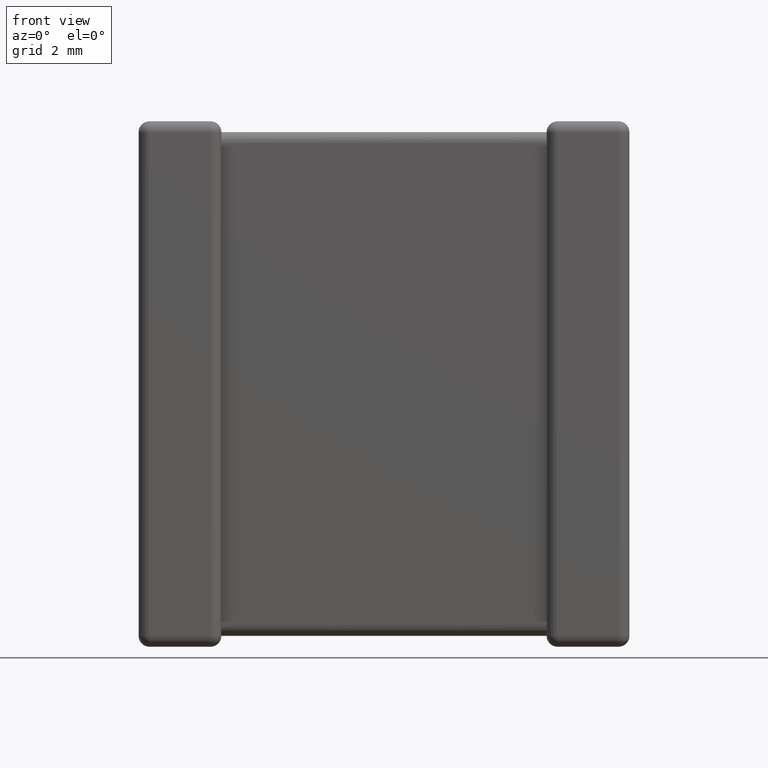
[diagram: clean part render]
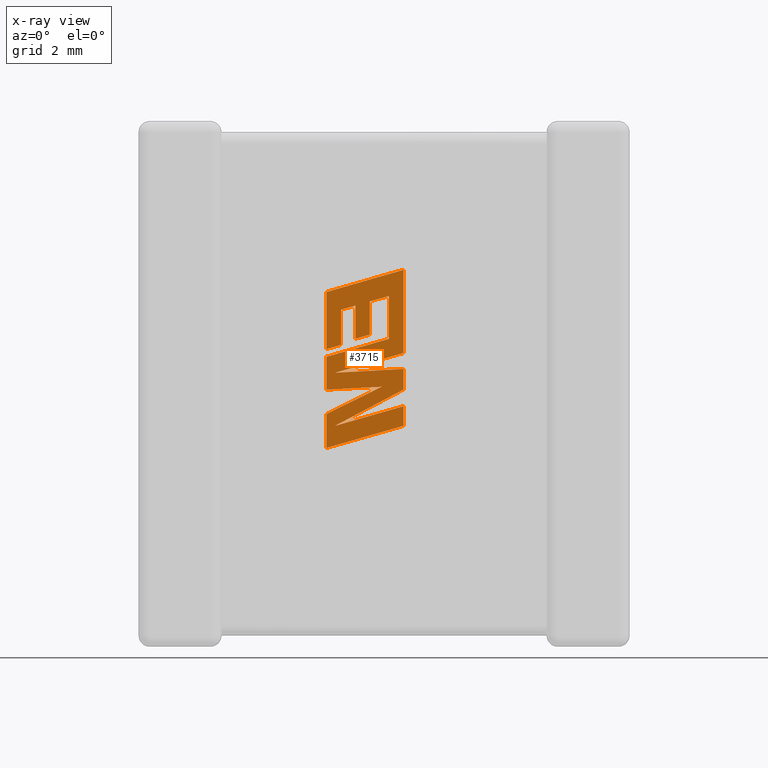
[diagram: x-ray — body ghosted, one internal face saturated and labeled with its STEP entity id]
A machine part, front view, then the same camera in x-ray: the body is ghosted and one INTERNAL B-rep face — a face not visible from any outside direction — is saturated and labeled: STEP entity #3715.
In plain terms, the highlighted planar face has unit normal (0, -1, 0).
Its self-contained STEP definition (entity closure, byte-faithful):
#2 = CARTESIAN_POINT ( 'NONE',  ( 3.787682651030821468, 2.479520000000000390, -4.753350826579630706 ) ) ;
#4 = DIRECTION ( 'NONE',  ( -0.8843386665637650301, 0.000000000000000000, -0.4668459304955135947 ) ) ;
#80 = CARTESIAN_POINT ( 'NONE',  ( 3.787682651030821468, 2.479520000000000390, -6.592673424502645041 ) ) ;
#109 = LINE ( 'NONE', #1519, #1306 ) ;
#141 = VECTOR ( 'NONE', #2270, 1000.000000000000000 ) ;
#183 = VECTOR ( 'NONE', #4, 1000.000000000000114 ) ;
#199 = EDGE_CURVE ( 'NONE', #2084, #3254, #944, .T. ) ;
#207 = VERTEX_POINT ( 'NONE', #627 ) ;
#250 = VERTEX_POINT ( 'NONE', #2452 ) ;
#260 = CARTESIAN_POINT ( 'NONE',  ( 3.787682651030821468, 2.479520000000000390, -5.909206033792117729 ) ) ;
#274 = CARTESIAN_POINT ( 'NONE',  ( 3.958671024281931849, 2.479520000000000390, -5.075393853701968716 ) ) ;
#281 = VERTEX_POINT ( 'NONE', #299 ) ;
#297 = EDGE_CURVE ( 'NONE', #1249, #281, #1197, .T. ) ;
#299 = CARTESIAN_POINT ( 'NONE',  ( 5.049529179079932817, 2.479520000000000390, -3.526804084612369827 ) ) ;
#300 = VECTOR ( 'NONE', #526, 999.9999999999998863 ) ;
#327 = ORIENTED_EDGE ( 'NONE', *, *, #2871, .F. ) ;
#351 = DIRECTION ( 'NONE',  ( 0.000000000000000000, 0.000000000000000000, 1.000000000000000000 ) ) ;
#355 = VERTEX_POINT ( 'NONE', #260 ) ;
#406 = VERTEX_POINT ( 'NONE', #2769 ) ;
#413 = CARTESIAN_POINT ( 'NONE',  ( 5.346000000000030283, 2.479520000000000390, -4.677051166878213095 ) ) ;
#436 = VECTOR ( 'NONE', #4077, 1000.000000000000000 ) ;
#449 = VERTEX_POINT ( 'NONE', #4433 ) ;
#507 = DIRECTION ( 'NONE',  ( 0.9984327301130250243, 0.000000000000000000, 0.05596501978067342647 ) ) ;
#512 = CARTESIAN_POINT ( 'NONE',  ( 3.951990125172186730, 2.479520000000000390, -6.148966958880204281 ) ) ;
#515 = CARTESIAN_POINT ( 'NONE',  ( 5.049529179079932817, 2.479520000000000390, -4.390649078135830052 ) ) ;
#518 = LINE ( 'NONE', #2325, #1734 ) ;
#526 = DIRECTION ( 'NONE',  ( -0.9619530280415479195, 0.000000000000000000, -0.2732148821746302469 ) ) ;
#627 = CARTESIAN_POINT ( 'NONE',  ( 4.662226559585675112, 2.479520000000000390, -3.637157375635770240 ) ) ;
#670 = LINE ( 'NONE', #687, #183 ) ;
#683 = CARTESIAN_POINT ( 'NONE',  ( 4.374147137483565650, 2.479520000000000390, -4.388194676905993852 ) ) ;
#687 = CARTESIAN_POINT ( 'NONE',  ( 5.346000000000030283, 2.479520000000000390, -5.413063552481981233 ) ) ;
#708 = CARTESIAN_POINT ( 'NONE',  ( -5.111707589332566748, 2.479520000000000390, 0.02398527024839659794 ) ) ;
#715 = EDGE_CURVE ( 'NONE', #1277, #1262, #109, .T. ) ;
#745 = VECTOR ( 'NONE', #2572, 1000.000000000000114 ) ;
#773 = ORIENTED_EDGE ( 'NONE', *, *, #826, .F. ) ;
#781 = VECTOR ( 'NONE', #2361, 1000.000000000000000 ) ;
#805 = CARTESIAN_POINT ( 'NONE',  ( 5.346000000000030283, 2.479520000000000390, -4.677051166878213095 ) ) ;
#826 = EDGE_CURVE ( 'NONE', #1262, #449, #1690, .T. ) ;
#855 = ORIENTED_EDGE ( 'NONE', *, *, #2130, .F. ) ;
#864 = ORIENTED_EDGE ( 'NONE', *, *, #3577, .F. ) ;
#874 = VECTOR ( 'NONE', #1261, 1000.000000000000000 ) ;
#922 = LINE ( 'NONE', #1613, #3115 ) ;
#923 = VECTOR ( 'NONE', #1092, 1000.000000000000114 ) ;
#940 = EDGE_CURVE ( 'NONE', #4028, #2084, #2133, .T. ) ;
#944 = LINE ( 'NONE', #2996, #781 ) ;
#970 = ORIENTED_EDGE ( 'NONE', *, *, #3825, .F. ) ;
#1021 = FACE_OUTER_BOUND ( 'NONE', #4104, .T. ) ;
#1047 = CARTESIAN_POINT ( 'NONE',  ( 5.346000000000030283, 2.479520000000000390, -6.144645696475432572 ) ) ;
#1086 = VECTOR ( 'NONE', #1895, 1000.000000000000000 ) ;
#1092 = DIRECTION ( 'NONE',  ( -0.9617234872620624708, 0.000000000000000000, -0.2740217765953967821 ) ) ;
#1096 = VECTOR ( 'NONE', #3900, 1000.000000000000000 ) ;
#1099 = EDGE_CURVE ( 'NONE', #3254, #1277, #2971, .T. ) ;
#1183 = LINE ( 'NONE', #2988, #3366 ) ;
#1197 = LINE ( 'NONE', #515, #2649 ) ;
#1211 = EDGE_CURVE ( 'NONE', #250, #4028, #3352, .T. ) ;
#1249 = VERTEX_POINT ( 'NONE', #4126 ) ;
#1261 = DIRECTION ( 'NONE',  ( 0.000000000000000000, 0.000000000000000000, -1.000000000000000000 ) ) ;
#1262 = VERTEX_POINT ( 'NONE', #1590 ) ;
#1277 = VERTEX_POINT ( 'NONE', #274 ) ;
#1304 = ORIENTED_EDGE ( 'NONE', *, *, #1735, .F. ) ;
#1306 = VECTOR ( 'NONE', #507, 1000.000000000000114 ) ;
#1317 = PLANE ( 'NONE',  #2932 ) ;
#1347 = LINE ( 'NONE', #512, #4084 ) ;
#1385 = EDGE_CURVE ( 'NONE', #3996, #2139, #3859, .T. ) ;
#1398 = LINE ( 'NONE', #1798, #3363 ) ;
#1481 = CARTESIAN_POINT ( 'NONE',  ( 4.084300356963971090, 2.479520000000000390, -4.513672386345949583 ) ) ;
#1495 = VERTEX_POINT ( 'NONE', #3651 ) ;
#1511 = CARTESIAN_POINT ( 'NONE',  ( 5.346000000000030283, 2.479520000000000390, -6.144645696475432572 ) ) ;
#1519 = CARTESIAN_POINT ( 'NONE',  ( 3.958671024281931849, 2.479520000000000390, -5.075393853701968716 ) ) ;
#1527 = EDGE_CURVE ( 'NONE', #3290, #250, #4072, .T. ) ;
#1539 = ORIENTED_EDGE ( 'NONE', *, *, #1385, .F. ) ;
#1543 = CARTESIAN_POINT ( 'NONE',  ( 4.662226559585675112, 2.479520000000000390, -3.637157375635770240 ) ) ;
#1575 = VECTOR ( 'NONE', #2490, 1000.000000000000000 ) ;
#1590 = CARTESIAN_POINT ( 'NONE',  ( 5.346000000000030283, 2.479520000000000390, -4.997630083317984528 ) ) ;
#1613 = CARTESIAN_POINT ( 'NONE',  ( 3.787682651030821468, 2.479520000000000390, -5.909206033792117729 ) ) ;
#1621 = CARTESIAN_POINT ( 'NONE',  ( 3.787682651030821468, 2.479520000000000390, -5.416983054217203275 ) ) ;
#1645 = ORIENTED_EDGE ( 'NONE', *, *, #4179, .F. ) ;
#1690 = LINE ( 'NONE', #3407, #874 ) ;
#1728 = EDGE_CURVE ( 'NONE', #207, #1495, #4333, .T. ) ;
#1734 = VECTOR ( 'NONE', #1933, 1000.000000000000114 ) ;
#1735 = EDGE_CURVE ( 'NONE', #1804, #1838, #1876, .T. ) ;
#1766 = ORIENTED_EDGE ( 'NONE', *, *, #3045, .F. ) ;
#1767 = LINE ( 'NONE', #2, #1575 ) ;
#1795 = VERTEX_POINT ( 'NONE', #3025 ) ;
#1798 = CARTESIAN_POINT ( 'NONE',  ( 4.374147137483565650, 2.479520000000000390, -3.719346649405302241 ) ) ;
#1804 = VERTEX_POINT ( 'NONE', #2204 ) ;
#1835 = CARTESIAN_POINT ( 'NONE',  ( 4.084300356963971090, 2.479520000000000390, -3.803687077924575721 ) ) ;
#1838 = VERTEX_POINT ( 'NONE', #1621 ) ;
#1876 = LINE ( 'NONE', #2599, #745 ) ;
#1895 = DIRECTION ( 'NONE',  ( -0.9611638845408968512, 0.000000000000000000, -0.2759782365590690567 ) ) ;
#1899 = CARTESIAN_POINT ( 'NONE',  ( 5.346000000000030283, 2.479520000000000390, -5.748653169907376181 ) ) ;
#1930 = VECTOR ( 'NONE', #3314, 1000.000000000000000 ) ;
#1933 = DIRECTION ( 'NONE',  ( -0.9615454294334447871, 0.000000000000000000, -0.2746459304917006072 ) ) ;
#1938 = EDGE_CURVE ( 'NONE', #3271, #355, #3864, .T. ) ;
#2013 = DIRECTION ( 'NONE',  ( 0.000000000000000000, 0.000000000000000000, -1.000000000000000000 ) ) ;
#2024 = ORIENTED_EDGE ( 'NONE', *, *, #1938, .F. ) ;
#2084 = VERTEX_POINT ( 'NONE', #3020 ) ;
#2130 = EDGE_CURVE ( 'NONE', #355, #1804, #922, .T. ) ;
#2133 = LINE ( 'NONE', #3479, #3973 ) ;
#2139 = VERTEX_POINT ( 'NONE', #2456 ) ;
#2204 = CARTESIAN_POINT ( 'NONE',  ( 4.900964587055820942, 2.479520000000000390, -5.357054624985720714 ) ) ;
#2216 = EDGE_CURVE ( 'NONE', #281, #207, #3536, .T. ) ;
#2260 = LINE ( 'NONE', #1511, #3442 ) ;
#2266 = EDGE_CURVE ( 'NONE', #2139, #3763, #1398, .T. ) ;
#2270 = DIRECTION ( 'NONE',  ( 0.000000000000000000, 0.000000000000000000, -1.000000000000000000 ) ) ;
#2325 = CARTESIAN_POINT ( 'NONE',  ( 4.662226559585675112, 2.479520000000000390, -4.305910638610100705 ) ) ;
#2361 = DIRECTION ( 'NONE',  ( 0.000000000000000000, 0.000000000000000000, -1.000000000000000000 ) ) ;
#2452 = CARTESIAN_POINT ( 'NONE',  ( 3.787682651030821468, 2.479520000000000390, -4.597918050338947182 ) ) ;
#2456 = CARTESIAN_POINT ( 'NONE',  ( 4.374147137483565650, 2.479520000000000390, -3.719346649405302241 ) ) ;
#2480 = DIRECTION ( 'NONE',  ( 0.9610029908221285888, 0.000000000000000000, 0.2765379750249931656 ) ) ;
#2490 = DIRECTION ( 'NONE',  ( 0.9610853065513847993, 0.000000000000000000, 0.2762517575166369976 ) ) ;
#2559 = EDGE_CURVE ( 'NONE', #449, #406, #670, .T. ) ;
#2572 = DIRECTION ( 'NONE',  ( -0.9985542843760948362, 0.000000000000000000, -0.05375259206908060416 ) ) ;
#2599 = CARTESIAN_POINT ( 'NONE',  ( 4.900964587055820942, 2.479520000000000390, -5.357054624985720714 ) ) ;
#2649 = VECTOR ( 'NONE', #3298, 1000.000000000000000 ) ;
#2697 = VECTOR ( 'NONE', #4335, 1000.000000000000000 ) ;
#2729 = CARTESIAN_POINT ( 'NONE',  ( 4.084300356963971090, 2.479520000000000390, -4.513672386345949583 ) ) ;
#2750 = DIRECTION ( 'NONE',  ( 0.000000000000000000, 0.000000000000000000, -1.000000000000000000 ) ) ;
#2769 = CARTESIAN_POINT ( 'NONE',  ( 3.951990125172186730, 2.479520000000000390, -6.148966958880204281 ) ) ;
#2785 = DIRECTION ( 'NONE',  ( 0.9611542233438713501, 0.000000000000000000, 0.2760118818968482768 ) ) ;
#2815 = ORIENTED_EDGE ( 'NONE', *, *, #3773, .F. ) ;
#2819 = CARTESIAN_POINT ( 'NONE',  ( 5.346000000000030283, 2.479520000000000390, -5.748653169907376181 ) ) ;
#2824 = DIRECTION ( 'NONE',  ( 0.000000000000000000, -1.000000000000000000, 0.000000000000000000 ) ) ;
#2830 = CARTESIAN_POINT ( 'NONE',  ( 4.374147137483565650, 2.479520000000000390, -4.388194676905993852 ) ) ;
#2832 = DIRECTION ( 'NONE',  ( -0.9601763114327565019, 0.000000000000000000, -0.2793947940878392933 ) ) ;
#2869 = ORIENTED_EDGE ( 'NONE', *, *, #2266, .F. ) ;
#2871 = EDGE_CURVE ( 'NONE', #1838, #1795, #3642, .T. ) ;
#2932 = AXIS2_PLACEMENT_3D ( 'NONE', #708, #2824, #2750 ) ;
#2971 = LINE ( 'NONE', #413, #1086 ) ;
#2988 = CARTESIAN_POINT ( 'NONE',  ( 4.084300356963971090, 2.479520000000000390, -3.803687077924575721 ) ) ;
#2996 = CARTESIAN_POINT ( 'NONE',  ( 5.346000000000030283, 2.479520000000000390, -4.399675398035078011 ) ) ;
#3020 = CARTESIAN_POINT ( 'NONE',  ( 5.346000000000030283, 2.479520000000000390, -2.998264413692402819 ) ) ;
#3025 = CARTESIAN_POINT ( 'NONE',  ( 3.787682651030821468, 2.479520000000000390, -4.753350826579630706 ) ) ;
#3045 = EDGE_CURVE ( 'NONE', #406, #4018, #1347, .T. ) ;
#3052 = VECTOR ( 'NONE', #351, 1000.000000000000000 ) ;
#3115 = VECTOR ( 'NONE', #4399, 1000.000000000000114 ) ;
#3196 = EDGE_CURVE ( 'NONE', #3510, #3271, #2260, .T. ) ;
#3254 = VERTEX_POINT ( 'NONE', #805 ) ;
#3271 = VERTEX_POINT ( 'NONE', #80 ) ;
#3275 = CARTESIAN_POINT ( 'NONE',  ( 3.787682651030821468, 2.479520000000000390, -5.416983054217203275 ) ) ;
#3290 = VERTEX_POINT ( 'NONE', #1481 ) ;
#3298 = DIRECTION ( 'NONE',  ( 0.000000000000000000, 0.000000000000000000, 1.000000000000000000 ) ) ;
#3314 = DIRECTION ( 'NONE',  ( 0.000000000000000000, 0.000000000000000000, -1.000000000000000000 ) ) ;
#3352 = LINE ( 'NONE', #4444, #436 ) ;
#3363 = VECTOR ( 'NONE', #2832, 1000.000000000000114 ) ;
#3366 = VECTOR ( 'NONE', #2013, 1000.000000000000000 ) ;
#3375 = ORIENTED_EDGE ( 'NONE', *, *, #199, .F. ) ;
#3407 = CARTESIAN_POINT ( 'NONE',  ( 5.346000000000030283, 2.479520000000000390, -4.997630083317984528 ) ) ;
#3413 = ORIENTED_EDGE ( 'NONE', *, *, #2559, .F. ) ;
#3442 = VECTOR ( 'NONE', #3677, 1000.000000000000114 ) ;
#3479 = CARTESIAN_POINT ( 'NONE',  ( 3.787682651030821468, 2.479520000000000390, -3.446685415755674331 ) ) ;
#3495 = ORIENTED_EDGE ( 'NONE', *, *, #715, .F. ) ;
#3506 = ORIENTED_EDGE ( 'NONE', *, *, #940, .F. ) ;
#3510 = VERTEX_POINT ( 'NONE', #1047 ) ;
#3529 = CARTESIAN_POINT ( 'NONE',  ( 3.787682651030821468, 2.479520000000000390, -3.446685415755674331 ) ) ;
#3536 = LINE ( 'NONE', #3884, #923 ) ;
#3577 = EDGE_CURVE ( 'NONE', #3763, #3290, #1183, .T. ) ;
#3589 = CARTESIAN_POINT ( 'NONE',  ( 3.787682651030821468, 2.479520000000000390, -6.592673424502645041 ) ) ;
#3642 = LINE ( 'NONE', #3275, #2697 ) ;
#3651 = CARTESIAN_POINT ( 'NONE',  ( 4.662226559585675112, 2.479520000000000390, -4.305910638610100705 ) ) ;
#3677 = DIRECTION ( 'NONE',  ( -0.9610674221107078363, 0.000000000000000000, -0.2763139702539095244 ) ) ;
#3715 = ADVANCED_FACE ( 'NONE', ( #1021 ), #1317, .T. ) ;
#3763 = VERTEX_POINT ( 'NONE', #1835 ) ;
#3773 = EDGE_CURVE ( 'NONE', #1795, #1249, #1767, .T. ) ;
#3811 = ORIENTED_EDGE ( 'NONE', *, *, #3196, .F. ) ;
#3825 = EDGE_CURVE ( 'NONE', #1495, #3996, #518, .T. ) ;
#3859 = LINE ( 'NONE', #2830, #1096 ) ;
#3864 = LINE ( 'NONE', #3589, #3052 ) ;
#3884 = CARTESIAN_POINT ( 'NONE',  ( 5.049529179079932817, 2.479520000000000390, -3.526804084612369827 ) ) ;
#3900 = DIRECTION ( 'NONE',  ( 0.000000000000000000, 0.000000000000000000, 1.000000000000000000 ) ) ;
#3911 = ORIENTED_EDGE ( 'NONE', *, *, #1527, .F. ) ;
#3968 = ORIENTED_EDGE ( 'NONE', *, *, #2216, .F. ) ;
#3973 = VECTOR ( 'NONE', #2480, 1000.000000000000114 ) ;
#3996 = VERTEX_POINT ( 'NONE', #683 ) ;
#4018 = VERTEX_POINT ( 'NONE', #2819 ) ;
#4028 = VERTEX_POINT ( 'NONE', #3529 ) ;
#4072 = LINE ( 'NONE', #2729, #300 ) ;
#4077 = DIRECTION ( 'NONE',  ( 0.000000000000000000, 0.000000000000000000, 1.000000000000000000 ) ) ;
#4084 = VECTOR ( 'NONE', #2785, 999.9999999999998863 ) ;
#4104 = EDGE_LOOP ( 'NONE', ( #2024, #3811, #1645, #1766, #3413, #773, #3495, #4129, #3375, #3506, #4175, #3911, #864, #2869, #1539, #970, #4271, #3968, #4532, #2815, #327, #1304, #855 ) ) ;
#4126 = CARTESIAN_POINT ( 'NONE',  ( 5.049529179079932817, 2.479520000000000390, -4.390649078135830052 ) ) ;
#4129 = ORIENTED_EDGE ( 'NONE', *, *, #1099, .F. ) ;
#4175 = ORIENTED_EDGE ( 'NONE', *, *, #1211, .F. ) ;
#4179 = EDGE_CURVE ( 'NONE', #4018, #3510, #4332, .T. ) ;
#4271 = ORIENTED_EDGE ( 'NONE', *, *, #1728, .F. ) ;
#4332 = LINE ( 'NONE', #1899, #1930 ) ;
#4333 = LINE ( 'NONE', #1543, #141 ) ;
#4335 = DIRECTION ( 'NONE',  ( 0.000000000000000000, 0.000000000000000000, 1.000000000000000000 ) ) ;
#4399 = DIRECTION ( 'NONE',  ( 0.8958676361826827250, 0.000000000000000000, 0.4443210308329466618 ) ) ;
#4433 = CARTESIAN_POINT ( 'NONE',  ( 5.346000000000030283, 2.479520000000000390, -5.413063552481981233 ) ) ;
#4444 = CARTESIAN_POINT ( 'NONE',  ( 3.787682651030821468, 2.479520000000000390, -4.597918050338947182 ) ) ;
#4532 = ORIENTED_EDGE ( 'NONE', *, *, #297, .F. ) ;